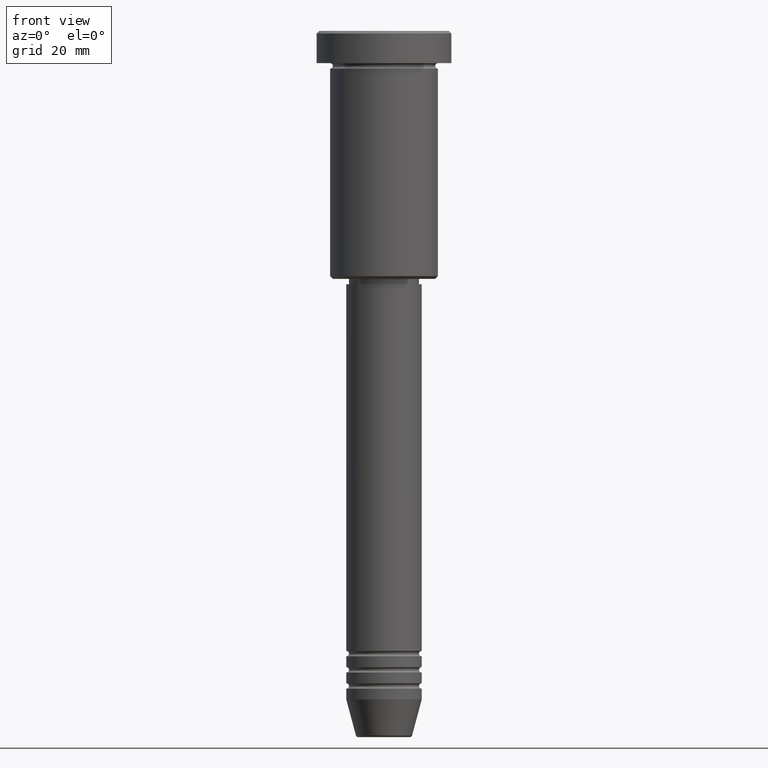
[diagram: clean part render]
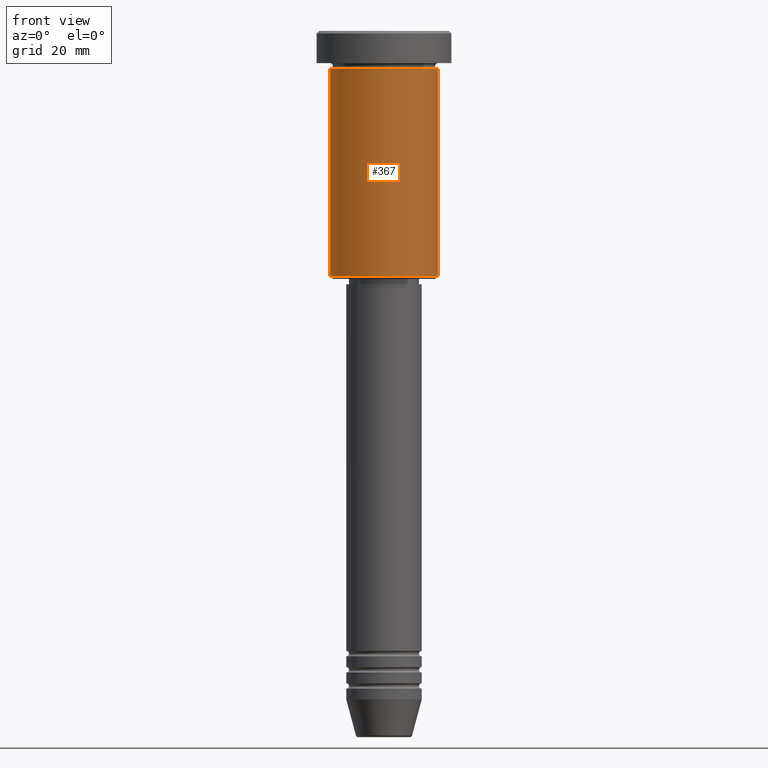
[diagram: same view with one face highlighted and labeled with its STEP entity id]
A machine part, front view. The second image highlights one B-rep face of the part: STEP entity #367.
In plain terms, the highlighted cylindrical surface (partial cylindrical patch) has radius 10 mm, axis along (-0, -0, 1).
Its self-contained STEP definition (entity closure, byte-faithful):
#9 = CIRCLE ( 'NONE', #682, 10.00000000000000000 ) ;
#67 = CARTESIAN_POINT ( 'NONE',  ( 10.00000000000000000, 0.000000000000000000, -45.50000000000000000 ) ) ;
#92 = DIRECTION ( 'NONE',  ( 1.000000000000000000, 0.000000000000000000, 0.000000000000000000 ) ) ;
#135 = EDGE_CURVE ( 'NONE', #1029, #401, #248, .T. ) ;
#164 = DIRECTION ( 'NONE',  ( -0.000000000000000000, -0.000000000000000000, 1.000000000000000000 ) ) ;
#192 = AXIS2_PLACEMENT_3D ( 'NONE', #338, #908, #92 ) ;
#203 = ORIENTED_EDGE ( 'NONE', *, *, #1183, .F. ) ;
#223 = CARTESIAN_POINT ( 'NONE',  ( -10.00000000000000000, 1.224646799147353256E-15, -45.50000000000000000 ) ) ;
#248 = CIRCLE ( 'NONE', #926, 10.00000000000000000 ) ;
#255 = DIRECTION ( 'NONE',  ( 1.000000000000000000, 0.000000000000000000, 0.000000000000000000 ) ) ;
#338 = CARTESIAN_POINT ( 'NONE',  ( 0.000000000000000000, 0.000000000000000000, 0.000000000000000000 ) ) ;
#347 = CARTESIAN_POINT ( 'NONE',  ( 0.000000000000000000, 0.000000000000000000, -6.999999999999996447 ) ) ;
#350 = EDGE_CURVE ( 'NONE', #401, #752, #994, .T. ) ;
#358 = DIRECTION ( 'NONE',  ( -0.000000000000000000, -0.000000000000000000, 1.000000000000000000 ) ) ;
#367 = ADVANCED_FACE ( 'NONE', ( #1179 ), #544, .T. ) ;
#370 = CARTESIAN_POINT ( 'NONE',  ( -10.00000000000000000, 1.224646799147353256E-15, 0.000000000000000000 ) ) ;
#378 = ORIENTED_EDGE ( 'NONE', *, *, #825, .F. ) ;
#401 = VERTEX_POINT ( 'NONE', #67 ) ;
#498 = ORIENTED_EDGE ( 'NONE', *, *, #350, .T. ) ;
#527 = CARTESIAN_POINT ( 'NONE',  ( 0.000000000000000000, 0.000000000000000000, -45.50000000000000000 ) ) ;
#544 = CYLINDRICAL_SURFACE ( 'NONE', #192, 10.00000000000000000 ) ;
#550 = VECTOR ( 'NONE', #164, 1000.000000000000000 ) ;
#557 = CARTESIAN_POINT ( 'NONE',  ( 10.00000000000000000, 0.000000000000000000, -6.999999999999996447 ) ) ;
#621 = DIRECTION ( 'NONE',  ( -1.000000000000000000, 0.000000000000000000, 0.000000000000000000 ) ) ;
#638 = LINE ( 'NONE', #370, #550 ) ;
#682 = AXIS2_PLACEMENT_3D ( 'NONE', #347, #1082, #255 ) ;
#724 = VECTOR ( 'NONE', #358, 1000.000000000000000 ) ;
#752 = VERTEX_POINT ( 'NONE', #557 ) ;
#822 = CARTESIAN_POINT ( 'NONE',  ( 10.00000000000000000, 0.000000000000000000, 0.000000000000000000 ) ) ;
#825 = EDGE_CURVE ( 'NONE', #1053, #752, #9, .T. ) ;
#908 = DIRECTION ( 'NONE',  ( -0.000000000000000000, -0.000000000000000000, 1.000000000000000000 ) ) ;
#926 = AXIS2_PLACEMENT_3D ( 'NONE', #527, #987, #621 ) ;
#987 = DIRECTION ( 'NONE',  ( -0.000000000000000000, -0.000000000000000000, 1.000000000000000000 ) ) ;
#994 = LINE ( 'NONE', #822, #724 ) ;
#1018 = ORIENTED_EDGE ( 'NONE', *, *, #135, .T. ) ;
#1029 = VERTEX_POINT ( 'NONE', #223 ) ;
#1053 = VERTEX_POINT ( 'NONE', #1151 ) ;
#1082 = DIRECTION ( 'NONE',  ( -0.000000000000000000, -0.000000000000000000, 1.000000000000000000 ) ) ;
#1097 = EDGE_LOOP ( 'NONE', ( #203, #1018, #498, #378 ) ) ;
#1151 = CARTESIAN_POINT ( 'NONE',  ( -10.00000000000000000, 1.224646799147353256E-15, -6.999999999999996447 ) ) ;
#1179 = FACE_OUTER_BOUND ( 'NONE', #1097, .T. ) ;
#1183 = EDGE_CURVE ( 'NONE', #1029, #1053, #638, .T. ) ;